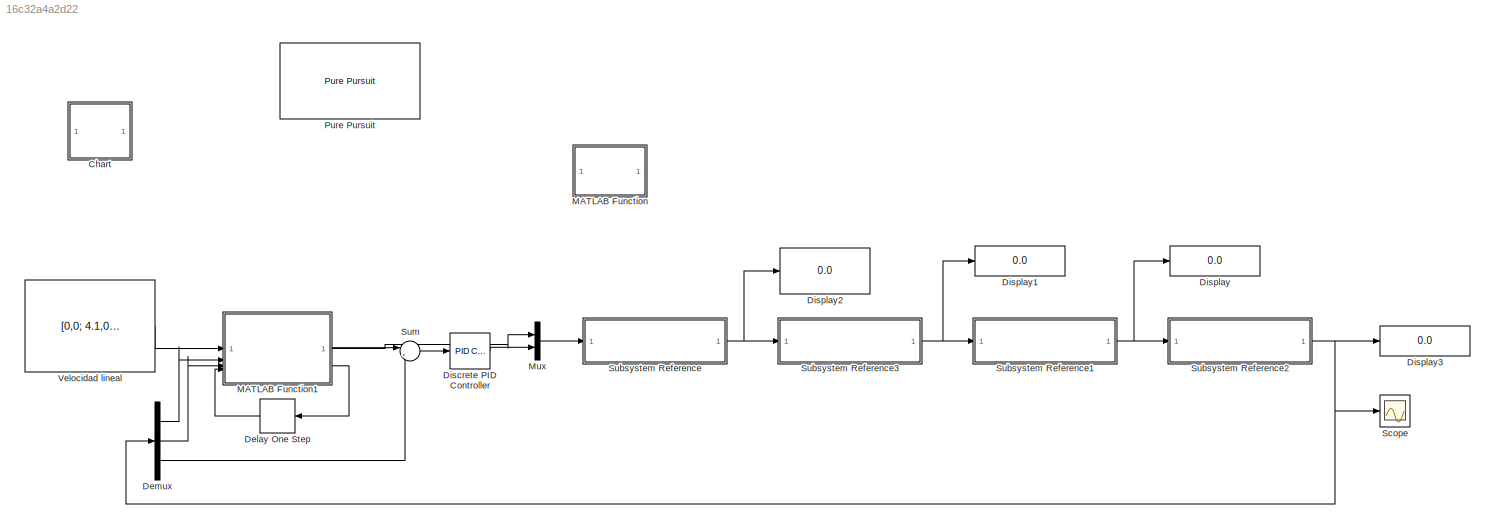
MODEL slx_16c32a4a2d22
KIND model
CONFIG AbsTol = auto
CONFIG EnableMultiTasking = off
CONFIG FixedStep = auto
CONFIG MaxStep = auto
CONFIG MinStep = auto
CONFIG RelTol = 1e-3
CONFIG SampleTimeConstraint = Unconstrained
CONFIG SolverName = VariableStepAuto
CONFIG StartTime = 0.0
CONFIG StopTime = 200
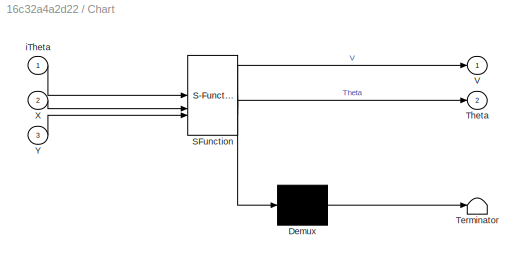
BLOCK [SubSystem] Chart
  Commented = on
  ErrorFcn = Stateflow.Translate.translate
  PermitHierarchicalResolution = ExplicitOnly
  SFBlockType = Chart
  TreatAsAtomicUnit = on
BLOCK [Demux] Chart/ Demux 
  Outputs = 1
BLOCK [S-Function] Chart/ SFunction 
  EnableBusSupport = on
  FunctionName = sf_sfun
  PortCounts = [3 3]
  SFcnIsStateOwnerBlock = off
  SFunctionDeploymentMode = off
  Tag = Stateflow S-Function 3
BLOCK [Terminator] Chart/ Terminator 
BLOCK [Outport] Chart/Theta
  Port = 2
BLOCK [Outport] Chart/V
BLOCK [Inport] Chart/X
  Port = 2
BLOCK [Inport] Chart/Y
  Port = 3
BLOCK [Inport] Chart/iTheta
BLOCK [Delay] Delay One Step
  DelayLength = 1
  InputPortMap = u0
  NameLocation = top
BLOCK [Demux] Demux
  NameLocation = top
  Outputs = 3
BLOCK [Reference] Discrete PID Controller  REF=slpidlib/PID Controller
  LibrarySourceBlock = simulink/Discrete/Discrete PID Controller
  SourceBlock = slpidlib/PID Controller
  SourceType = PID 1dof
BLOCK [Display] Display
  Decimation = 1
BLOCK [Display] Display1
  Decimation = 1
BLOCK [Display] Display2
  Decimation = 1
BLOCK [Display] Display3
  Decimation = 1
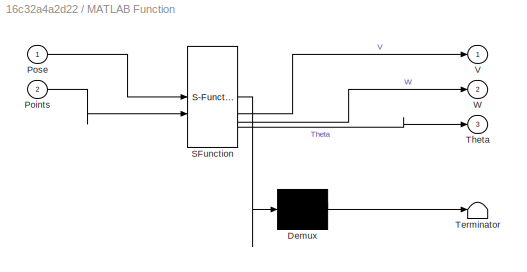
BLOCK [SubSystem] MATLAB Function
  Commented = on
  ErrorFcn = Stateflow.Translate.translate
  LibrarySourceBlock = simulink/User-Defined\nFunctions/MATLAB Function
  PermitHierarchicalResolution = ExplicitOnly
  SFBlockType = MATLAB Function
  TreatAsAtomicUnit = on
BLOCK [Demux] MATLAB Function/ Demux 
  Outputs = 1
BLOCK [S-Function] MATLAB Function/ SFunction 
  EnableBusSupport = on
  FunctionName = sf_sfun
  PortCounts = [2 4]
  SFcnIsStateOwnerBlock = off
  SFunctionDeploymentMode = off
  Tag = Stateflow S-Function 2
BLOCK [Terminator] MATLAB Function/ Terminator 
BLOCK [Inport] MATLAB Function/Points
  Port = 2
BLOCK [Inport] MATLAB Function/Pose
BLOCK [Outport] MATLAB Function/Theta
  Port = 3
BLOCK [Outport] MATLAB Function/V
BLOCK [Outport] MATLAB Function/W
  Port = 2
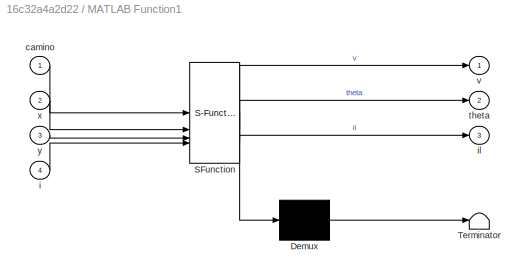
BLOCK [SubSystem] MATLAB Function1
  ErrorFcn = Stateflow.Translate.translate
  LibrarySourceBlock = simulink/User-Defined\nFunctions/MATLAB Function
  PermitHierarchicalResolution = ExplicitOnly
  SFBlockType = MATLAB Function
  TreatAsAtomicUnit = on
BLOCK [Demux] MATLAB Function1/ Demux 
  Outputs = 1
BLOCK [S-Function] MATLAB Function1/ SFunction 
  EnableBusSupport = on
  FunctionName = sf_sfun
  PortCounts = [4 4]
  SFcnIsStateOwnerBlock = off
  SFunctionDeploymentMode = off
  Tag = Stateflow S-Function 1
BLOCK [Terminator] MATLAB Function1/ Terminator 
BLOCK [Inport] MATLAB Function1/camino
BLOCK [Inport] MATLAB Function1/i
  Port = 4
BLOCK [Outport] MATLAB Function1/il
  Port = 3
BLOCK [Outport] MATLAB Function1/theta
  Port = 2
BLOCK [Outport] MATLAB Function1/v
BLOCK [Inport] MATLAB Function1/x
  Port = 2
BLOCK [Inport] MATLAB Function1/y
  Port = 3
BLOCK [Mux] Mux
  DisplayOption = bar
  Inputs = 2
BLOCK [Reference] Pure Pursuit  REF=robotalgslib/Pure Pursuit
  Commented = on
  LibrarySourceBlock = navlib/Control Algorithms/Pure Pursuit
  SourceBlock = robotalgslib/Pure Pursuit
  SourceType = nav.slalgs.internal.PurePursuit
BLOCK [Scope] Scope
  Floating = off
  NumInputPorts = 1
  ScopeSpecificationString = Simulink.scopes.TimeScopeBlockCfg('CurrentConfiguration', extmgr.ConfigurationSet(extmgr.Configuration('Core','General UI',true),extmgr.Configuration('Core','Source UI',true),extmgr.Configuration('Sources','WiredSimulink',true),extmgr.Configuration('Visuals','Time Domain',true),extmgr.Configuration('Tools','Plot Navigation',true),extmgr.Configuration('Tools','Measurements',true)),'Version','2022b'...<+1ch>
BLOCK [SubSystem] Subsystem Reference
  ReferencedSubsystem = MCI
BLOCK [SubSystem] Subsystem Reference1
  ReferencedSubsystem = MCD
BLOCK [SubSystem] Subsystem Reference2
  ReferencedSubsystem = Odometria
BLOCK [SubSystem] Subsystem Reference3
  ReferencedSubsystem = PieroCV
BLOCK [Sum] Sum
  Inputs = |+-
BLOCK [Constant] Velocidad lineal
  Value = [0,0; 4.1,0; 4.1, -11.48; 3.69, -11.48; 3.69, -15.58]
LINE Delay One Step:1 -> MATLAB Function1:4
LINE Demux:1 -> MATLAB Function1:2
LINE Demux:2 -> MATLAB Function1:3
LINE Demux:3 -> Sum:2
LINE Discrete PID Controller:1 -> Mux:2
LINE MATLAB Function1:1 -> Mux:1
LINE MATLAB Function1:2 -> Sum:1
LINE MATLAB Function1:3 -> Delay One Step:1
LINE Mux:1 -> Subsystem Reference:1
NET Subsystem Reference1:1 -> Display:1, Subsystem Reference2:1
NET Subsystem Reference2:1 -> Demux:1, Display3:1, Scope:1
NET Subsystem Reference3:1 -> Display1:1, Subsystem Reference1:1
NET Subsystem Reference:1 -> Display2:1, Subsystem Reference3:1
LINE Sum:1 -> Discrete PID Controller:1
LINE Velocidad lineal:1 -> MATLAB Function1:1
note: NET lines group one-source signal fan-out (src -> all destinations, sorted); 1:1 wires keep LINE
CHART MATLAB Function1 states=1 transitions=1
  STATE_LABEL 'eML_blk_kernel()'
  STATE_LABEL 'SCRIPT:\nfunction [v,theta,il] = HyPurePerduit(camino,x,y,i)\nL = 0.15; %Distancia de persecution \nv = 0.205; \ntheta = 0; \ni = i+1;\nif length(camino) >=i %Mientras haya camino \n    %Calculamos distancia al objetivo \n    distancia = sqrt((camino(i,1)-x)^2 + (camino(i,2)-y)^2);\n    while(distancia<0)&&(length(camino)>i)% ya hemos \n        i = i+1; %Actualizar objetivo \n        distancia = sqrt((camino...<+312ch>'
CHART MATLAB Function states=1 transitions=1
  STATE_LABEL 'eML_blk_kernel()'
  STATE_LABEL "SCRIPT:\nfunction [V, W, Theta] = PurePursuit(Pose, Points)\nx = Points(:,1)';\ny = Points(:,2)';\n\nrobot_x = Pose(1);\nrobot_y = Pose(2);\nrobot_theta = Pose(3);\n\nn = length(x);\n\nlookahead = 0.2;    %umbral de cambio al siguiente punto\nlinear_vel = 0.205; w_max = 1.5;\n\npersistent index;\nif isempty(index)\n    index = 1;\nend\n\nif (index < n)\n    target_x = x(index);\n    target_y = y(index);\n    \n    % Dis...<+541ch>"
CHART Chart states=9 transitions=9
  STATE_LABEL 'Paro\nV=0;\nTheta=0;'
  STATE_LABEL 'Tramo10A\nentry:\nV=0.205;\nTheta=0;\n'
  STATE_LABEL 'GiroDer1\nentry:\nV=0.05;\nTheta=-pi/2;\n'
  STATE_LABEL 'Tramo28A\nentry:\nV=0.205;\nTheta=-pi/2;\n'
  STATE_LABEL 'GiroDer3\nentry:\nV=0.05;\nTheta=-pi/2;\n'
  STATE_LABEL 'Tramo1A\nentry:\nV=0.205;\nTheta=0;\n'
  STATE_LABEL 'GiroDer2\nentry:\nV=0.05;\nTheta=-pi;\n'
  STATE_LABEL 'Tramo10A2\nentry:\nV=0.205;\nTheta=-pi/2;\n'
  STATE_LABEL 'FIN\nentry:\nV=0;\nTheta=-pi/2;\n'
CHART  states=0 transitions=0
CHART  states=0 transitions=0
CHART  states=0 transitions=0
